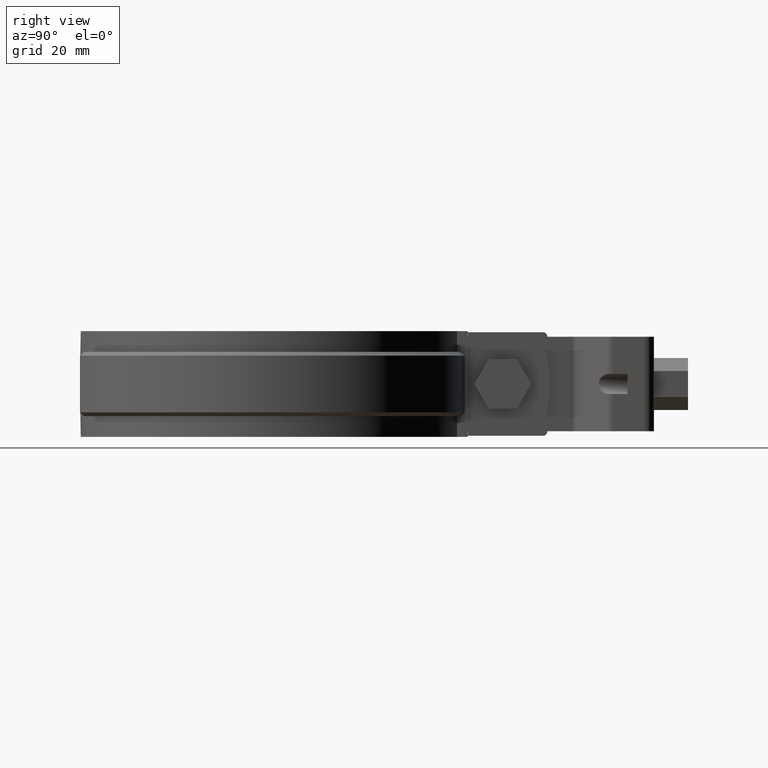
[diagram: clean part render]
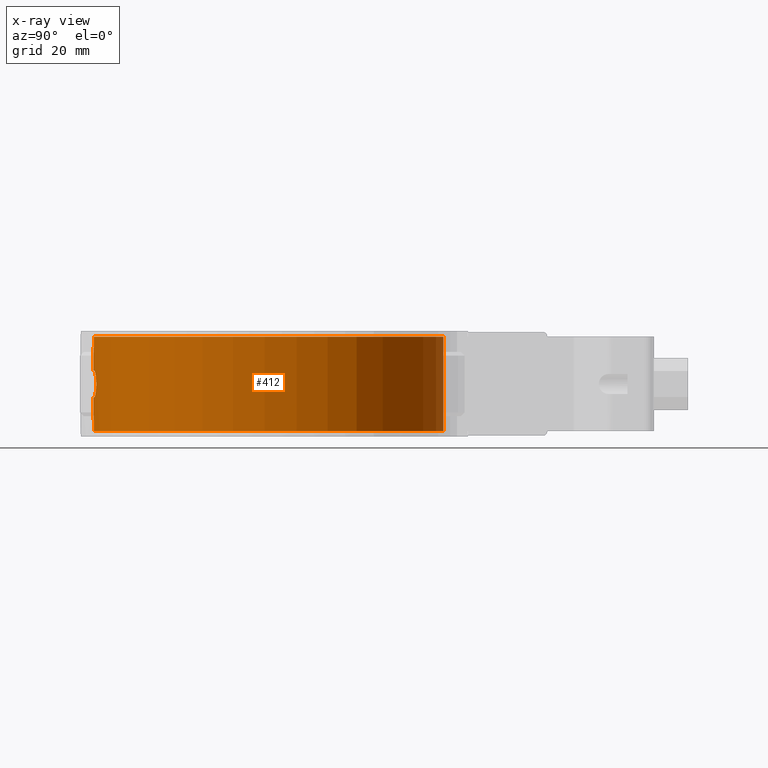
[diagram: x-ray — body ghosted, one internal face saturated and labeled with its STEP entity id]
A machine part, right view, then the same camera in x-ray: the body is ghosted and one INTERNAL B-rep face — a face not visible from any outside direction — is saturated and labeled: STEP entity #412.
In plain terms, the highlighted cylindrical surface (partial cylindrical patch) has radius 46.55 mm, axis along (0, 0, 1).
Its self-contained STEP definition (entity closure, byte-faithful):
#412 = ADVANCED_FACE( '', ( #800, #801 ), #802, .T. );
#800 = FACE_BOUND( '', #1784, .T. );
#801 = FACE_OUTER_BOUND( '', #1785, .T. );
#802 = CYLINDRICAL_SURFACE( '', #1786, 46.5500000000000 );
#1784 = EDGE_LOOP( '', ( #3670, #3671, #3672, #3673, #3674, #3675, #3676, #3677, #3678, #3679, #3680, #3681, #3682, #3683, #3684, #3685 ) );
#1785 = EDGE_LOOP( '', ( #3686, #3687, #3688, #3689 ) );
#1786 = AXIS2_PLACEMENT_3D( '', #3690, #3691, #3692 );
#3670 = ORIENTED_EDGE( '', *, *, #6330, .F. );
#3671 = ORIENTED_EDGE( '', *, *, #6331, .F. );
#3672 = ORIENTED_EDGE( '', *, *, #6332, .F. );
#3673 = ORIENTED_EDGE( '', *, *, #6333, .F. );
#3674 = ORIENTED_EDGE( '', *, *, #6334, .F. );
#3675 = ORIENTED_EDGE( '', *, *, #6335, .F. );
#3676 = ORIENTED_EDGE( '', *, *, #6336, .F. );
#3677 = ORIENTED_EDGE( '', *, *, #6337, .F. );
#3678 = ORIENTED_EDGE( '', *, *, #6338, .F. );
#3679 = ORIENTED_EDGE( '', *, *, #6339, .F. );
#3680 = ORIENTED_EDGE( '', *, *, #6340, .F. );
#3681 = ORIENTED_EDGE( '', *, *, #6341, .F. );
#3682 = ORIENTED_EDGE( '', *, *, #6342, .F. );
#3683 = ORIENTED_EDGE( '', *, *, #6343, .F. );
#3684 = ORIENTED_EDGE( '', *, *, #6344, .F. );
#3685 = ORIENTED_EDGE( '', *, *, #6345, .F. );
#3686 = ORIENTED_EDGE( '', *, *, #6346, .T. );
#3687 = ORIENTED_EDGE( '', *, *, #6347, .F. );
#3688 = ORIENTED_EDGE( '', *, *, #6324, .F. );
#3689 = ORIENTED_EDGE( '', *, *, #6348, .T. );
#3690 = CARTESIAN_POINT( '', ( 8.67361737988404E-016, 1.38777878078145E-014, 14.0000000000000 ) );
#3691 = DIRECTION( '', ( 0.000000000000000, 0.000000000000000, 1.00000000000000 ) );
#3692 = DIRECTION( '', ( 0.107411385606873, 0.994214662053428, 0.000000000000000 ) );
#6324 = EDGE_CURVE( '', #7362, #7364, #7365, .T. );
#6330 = EDGE_CURVE( '', #7375, #7376, #7377, .T. );
#6331 = EDGE_CURVE( '', #7378, #7375, #7379, .F. );
#6332 = EDGE_CURVE( '', #7380, #7378, #7381, .T. );
#6333 = EDGE_CURVE( '', #7382, #7380, #7383, .F. );
#6334 = EDGE_CURVE( '', #7384, #7382, #7385, .T. );
#6335 = EDGE_CURVE( '', #7386, #7384, #7387, .F. );
#6336 = EDGE_CURVE( '', #7388, #7386, #7389, .T. );
#6337 = EDGE_CURVE( '', #7390, #7388, #7391, .F. );
#6338 = EDGE_CURVE( '', #7392, #7390, #7393, .T. );
#6339 = EDGE_CURVE( '', #7394, #7392, #7395, .F. );
#6340 = EDGE_CURVE( '', #7396, #7394, #7397, .T. );
#6341 = EDGE_CURVE( '', #7398, #7396, #7399, .F. );
#6342 = EDGE_CURVE( '', #7400, #7398, #7401, .T. );
#6343 = EDGE_CURVE( '', #7402, #7400, #7403, .F. );
#6344 = EDGE_CURVE( '', #7404, #7402, #7405, .T. );
#6345 = EDGE_CURVE( '', #7376, #7404, #7406, .F. );
#6346 = EDGE_CURVE( '', #7407, #7408, #7409, .T. );
#6347 = EDGE_CURVE( '', #7364, #7408, #7410, .T. );
#6348 = EDGE_CURVE( '', #7362, #7407, #7411, .T. );
#7362 = VERTEX_POINT( '', #10411 );
#7364 = VERTEX_POINT( '', #10413 );
#7365 = CIRCLE( '', #10414, 46.5500000000000 );
#7375 = VERTEX_POINT( '', #10442 );
#7376 = VERTEX_POINT( '', #10443 );
#7377 = B_SPLINE_CURVE_WITH_KNOTS( '', 3, ( #10444, #10445, #10446, #10447, #10448, #10449 ), .UNSPECIFIED., .F., .F., ( 4, 2, 4 ), ( 2.61054119918270E-012, 0.000335866558676800, 0.000671733114743058 ), .UNSPECIFIED. );
#7378 = VERTEX_POINT( '', #10450 );
#7379 = ELLIPSE( '', #10451, 212.061327465781, 46.5500000000000 );
#7380 = VERTEX_POINT( '', #10452 );
#7381 = B_SPLINE_CURVE_WITH_KNOTS( '', 3, ( #10453, #10454, #10455, #10456, #10457, #10458, #10459, #10460, #10461, #10462 ), .UNSPECIFIED., .F., .F., ( 4, 2, 2, 2, 4 ), ( 1.08420217248550E-019, 0.000671567803738432, 0.00134313560747686, 0.00201470341121530, 0.00268627121495373 ), .UNSPECIFIED. );
#7382 = VERTEX_POINT( '', #10463 );
#7383 = ELLIPSE( '', #10464, 212.061219288399, 46.5500000000000 );
#7384 = VERTEX_POINT( '', #10465 );
#7385 = B_SPLINE_CURVE_WITH_KNOTS( '', 3, ( #10466, #10467, #10468, #10469, #10470, #10471 ), .UNSPECIFIED., .F., .F., ( 4, 2, 4 ), ( 6.50521303491303E-019, 0.000335865706471800, 0.000671731412943599 ), .UNSPECIFIED. );
#7386 = VERTEX_POINT( '', #10472 );
#7387 = CIRCLE( '', #10473, 46.5500000000000 );
#7388 = VERTEX_POINT( '', #10474 );
#7389 = B_SPLINE_CURVE_WITH_KNOTS( '', 3, ( #10475, #10476, #10477, #10478, #10479, #10480, #10481, #10482, #10483, #10484, #10485, #10486, #10487, #10488, #10489, #10490, #10491, #10492, #10493, #10494, #10495, #10496, #10497, #10498, #10499, #10500, #10501, #10502, #10503, #10504, #10505, #10506, #10507, #10508 ), .UNSPECIFIED., .F., .F., ( 4, 2, 2, 2, 2, 2, 2, 2, 2, 2, 2, 2, 2, 2, 2, 2, 4 ), ( 2.63797774002510E-018, 0.000687153855287155, 0.00137430771057431, 0.00206146156586146, 0.00274861542114861, 0.00343576927643576, 0.00412292313172292, 0.00481007698701007, 0.00549723084229722, 0.00618438469758438, 0.00687153855287153, 0.00755869240815868, 0.00824584626344583, 0.00893300011873299, 0.00962015397402014, 0.0103073078293073, 0.0109944616845944 ), .UNSPECIFIED. );
#7390 = VERTEX_POINT( '', #10509 );
#7391 = CIRCLE( '', #10510, 46.5500000000000 );
#7392 = VERTEX_POINT( '', #10511 );
#7393 = B_SPLINE_CURVE_WITH_KNOTS( '', 3, ( #10512, #10513, #10514, #10515, #10516, #10517 ), .UNSPECIFIED., .F., .F., ( 4, 2, 4 ), ( 0.000000000000000, 0.000335866557371516, 0.000671733114743032 ), .UNSPECIFIED. );
#7394 = VERTEX_POINT( '', #10518 );
#7395 = ELLIPSE( '', #10519, 212.061327465736, 46.5500000000000 );
#7396 = VERTEX_POINT( '', #10520 );
#7397 = B_SPLINE_CURVE_WITH_KNOTS( '', 3, ( #10521, #10522, #10523, #10524, #10525, #10526, #10527, #10528, #10529, #10530 ), .UNSPECIFIED., .F., .F., ( 4, 2, 2, 2, 4 ), ( 1.08420217248550E-019, 0.000671567803738432, 0.00134313560747686, 0.00201470341121530, 0.00268627121495373 ), .UNSPECIFIED. );
#7398 = VERTEX_POINT( '', #10531 );
#7399 = ELLIPSE( '', #10532, 212.061219288385, 46.5500000000000 );
#7400 = VERTEX_POINT( '', #10533 );
#7401 = B_SPLINE_CURVE_WITH_KNOTS( '', 3, ( #10534, #10535, #10536, #10537, #10538, #10539 ), .UNSPECIFIED., .F., .F., ( 4, 2, 4 ), ( 6.50521303491303E-019, 0.000335865780853563, 0.000671731561707125 ), .UNSPECIFIED. );
#7402 = VERTEX_POINT( '', #10540 );
#7403 = CIRCLE( '', #10541, 46.5500000000000 );
#7404 = VERTEX_POINT( '', #10542 );
#7405 = B_SPLINE_CURVE_WITH_KNOTS( '', 3, ( #10543, #10544, #10545, #10546, #10547, #10548, #10549, #10550, #10551, #10552, #10553, #10554, #10555, #10556, #10557, #10558, #10559, #10560, #10561, #10562, #10563, #10564, #10565, #10566, #10567, #10568, #10569, #10570, #10571, #10572, #10573, #10574, #10575, #10576 ), .UNSPECIFIED., .F., .F., ( 4, 2, 2, 2, 2, 2, 2, 2, 2, 2, 2, 2, 2, 2, 2, 2, 4 ), ( 1.78811203067275E-018, 0.000687153882971472, 0.00137430776594294, 0.00206146164891441, 0.00274861553188588, 0.00343576941485735, 0.00412292329782882, 0.00481007718080029, 0.00549723106377176, 0.00618438494674323, 0.00687153882971470, 0.00755869271268617, 0.00824584659565764, 0.00893300047862911, 0.00962015436160057, 0.0103073082445720, 0.0109944621275435 ), .UNSPECIFIED. );
#7406 = CIRCLE( '', #10577, 46.5500000000000 );
#7407 = VERTEX_POINT( '', #10578 );
#7408 = VERTEX_POINT( '', #10579 );
#7409 = CIRCLE( '', #10580, 46.5500000000000 );
#7410 = LINE( '', #10581, #10582 );
#7411 = LINE( '', #10583, #10584 );
#10411 = CARTESIAN_POINT( '', ( -6.57618567103940, 46.0831453138782, 12.5000000000000 ) );
#10413 = CARTESIAN_POINT( '', ( 6.57618567103934, 46.0831453138782, 12.5000000000000 ) );
#10414 = AXIS2_PLACEMENT_3D( '', #12710, #12711, #12712 );
#10442 = CARTESIAN_POINT( '', ( -1.16219512159039, -46.5354897094610, 3.89024390404278 ) );
#10443 = CARTESIAN_POINT( '', ( -1.65000682858043, -46.5207478171368, 3.50000000000001 ) );
#10444 = CARTESIAN_POINT( '', ( -1.16219512100910, -46.5354897094755, 3.89024390662629 ) );
#10445 = CARTESIAN_POINT( '', ( -1.18712430834741, -46.5348671184149, 3.77944751401507 ) );
#10446 = CARTESIAN_POINT( '', ( -1.24903601564424, -46.5333243675404, 3.68044135836372 ) );
#10447 = CARTESIAN_POINT( '', ( -1.42636244791044, -46.5282264634093, 3.53861503248765 ) );
#10448 = CARTESIAN_POINT( '', ( -1.53650488200991, -46.5247735093210, 3.50000000000000 ) );
#10449 = CARTESIAN_POINT( '', ( -1.65000000000002, -46.5207480593337, 3.50000000000000 ) );
#10450 = CARTESIAN_POINT( '', ( -0.975610000000002, -46.5397753016481, 4.71951200000000 ) );
#10451 = AXIS2_PLACEMENT_3D( '', #12719, #12720, #12721 );
#10452 = CARTESIAN_POINT( '', ( 0.975609757981829, -46.5397753067215, 4.71951218674745 ) );
#10453 = CARTESIAN_POINT( '', ( 0.975609757981829, -46.5397753067216, 4.71951218674745 ) );
#10454 = CARTESIAN_POINT( '', ( 0.925763530062202, -46.5408202293933, 4.94105088737464 ) );
#10455 = CARTESIAN_POINT( '', ( 0.802006305269125, -46.5434284250094, 5.13901841187625 ) );
#10456 = CARTESIAN_POINT( '', ( 0.447390993628906, -46.5481877731720, 5.42271336043309 ) );
#10457 = CARTESIAN_POINT( '', ( 0.227078940025845, -46.5500000020690, 5.50000007705422 ) );
#10458 = CARTESIAN_POINT( '', ( -0.227079788287816, -46.5499999979310, 5.49999992981291 ) );
#10459 = CARTESIAN_POINT( '', ( -0.447400404871723, -46.5481876641531, 5.42270760689847 ) );
#10460 = CARTESIAN_POINT( '', ( -0.802005970919182, -46.5434284122056, 5.13901722379013 ) );
#10461 = CARTESIAN_POINT( '', ( -0.925763810819942, -46.5408202237671, 4.94105072646416 ) );
#10462 = CARTESIAN_POINT( '', ( -0.975610000000002, -46.5397753016481, 4.71951200000000 ) );
#10463 = CARTESIAN_POINT( '', ( 1.16219499999999, -46.5354897124976, 3.89024400000000 ) );
#10464 = AXIS2_PLACEMENT_3D( '', #12722, #12723, #12724 );
#10465 = CARTESIAN_POINT( '', ( 1.64999985338327, -46.5207480645339, 3.50000000000001 ) );
#10466 = CARTESIAN_POINT( '', ( 1.64999985338327, -46.5207480645339, 3.50000000000001 ) );
#10467 = CARTESIAN_POINT( '', ( 1.53650473210132, -46.5247735142798, 3.50000003276938 ) );
#10468 = CARTESIAN_POINT( '', ( 1.42636208492635, -46.5282264719796, 3.53861567992496 ) );
#10469 = CARTESIAN_POINT( '', ( 1.24903833388322, -46.5333243027578, 3.68043907505769 ) );
#10470 = CARTESIAN_POINT( '', ( 1.18712418773605, -46.5348671214920, 3.77944760784149 ) );
#10471 = CARTESIAN_POINT( '', ( 1.16219499999999, -46.5354897124977, 3.89024400000000 ) );
#10472 = CARTESIAN_POINT( '', ( 5.00000000000005, -46.2806925185870, 3.50000000000001 ) );
#10473 = AXIS2_PLACEMENT_3D( '', #12725, #12726, #12727 );
#10474 = CARTESIAN_POINT( '', ( 5.00000045640250, -46.2806924692789, -3.49999999999999 ) );
#10475 = CARTESIAN_POINT( '', ( 5.00000045640250, -46.2806924692790, -3.49999999999999 ) );
#10476 = CARTESIAN_POINT( '', ( 5.23102106610029, -46.2557338290275, -3.49999997017233 ) );
#10477 = CARTESIAN_POINT( '', ( 5.45799987825243, -46.2294633025122, -3.47735289382784 ) );
#10478 = CARTESIAN_POINT( '', ( 5.90426049893031, -46.1745898505888, -3.38881391632060 ) );
#10479 = CARTESIAN_POINT( '', ( 6.12580446615839, -46.1456667121773, -3.32188126735501 ) );
#10480 = CARTESIAN_POINT( '', ( 6.54861750302442, -46.0875649765535, -3.14708056049549 ) );
#10481 = CARTESIAN_POINT( '', ( 6.74912349530375, -46.0585351708356, -3.04015198784038 ) );
#10482 = CARTESIAN_POINT( '', ( 7.12865837246471, -46.0013212837050, -2.78760982851635 ) );
#10483 = CARTESIAN_POINT( '', ( 7.30866038664463, -45.9729568370787, -2.64046611082769 ) );
#10484 = CARTESIAN_POINT( '', ( 7.63169234832155, -45.9204371591972, -2.31865829217156 ) );
#10485 = CARTESIAN_POINT( '', ( 7.77675668729094, -45.8959855185138, -2.14300665957758 ) );
#10486 = CARTESIAN_POINT( '', ( 8.03321742033214, -45.8517922132454, -1.76137560577943 ) );
#10487 = CARTESIAN_POINT( '', ( 8.14286709248893, -45.8323487025125, -1.55710842709564 ) );
#10488 = CARTESIAN_POINT( '', ( 8.31862646017255, -45.8007742935724, -1.13530704311511 ) );
#10489 = CARTESIAN_POINT( '', ( 8.38624550175340, -45.7883776663458, -0.914891106130496 ) );
#10490 = CARTESIAN_POINT( '', ( 8.47729764712873, -45.7716076572975, -0.460527173351232 ) );
#10491 = CARTESIAN_POINT( '', ( 8.49980240594055, -45.7674104478266, -0.232279077470369 ) );
#10492 = CARTESIAN_POINT( '', ( 8.50019502774523, -45.7673375294014, 0.226285044048782 ) );
#10493 = CARTESIAN_POINT( '', ( 8.47735734561299, -45.7715960510356, 0.459203352271291 ) );
#10494 = CARTESIAN_POINT( '', ( 8.38738052822720, -45.7881692197789, 0.910239572443790 ) );
#10495 = CARTESIAN_POINT( '', ( 8.32082453500568, -45.8003754511833, 1.12914289397610 ) );
#10496 = CARTESIAN_POINT( '', ( 8.14462244122536, -45.8320372414492, 1.55376511699691 ) );
#10497 = CARTESIAN_POINT( '', ( 8.03452138018219, -45.8515604122794, 1.75891288938776 ) );
#10498 = CARTESIAN_POINT( '', ( 7.78038526948292, -45.8953672074636, 2.13811939918123 ) );
#10499 = CARTESIAN_POINT( '', ( 7.63542065789159, -45.9198242279763, 2.31469933826260 ) );
#10500 = CARTESIAN_POINT( '', ( 7.30862022143948, -45.9729700607865, 2.64074814788168 ) );
#10501 = CARTESIAN_POINT( '', ( 7.13206941632344, -46.0007900861461, 2.78496147469918 ) );
#10502 = CARTESIAN_POINT( '', ( 6.75371262726835, -46.0578600073560, 3.03746910929911 ) );
#10503 = CARTESIAN_POINT( '', ( 6.54952335391558, -46.0874356862922, 3.14662697606876 ) );
#10504 = CARTESIAN_POINT( '', ( 6.12695479998138, -46.1455134241736, 3.32148439381650 ) );
#10505 = CARTESIAN_POINT( '', ( 5.90945041499932, -46.1739288055971, 3.38746892245342 ) );
#10506 = CARTESIAN_POINT( '', ( 5.46202402647784, -46.2289908940901, 3.47686337254867 ) );
#10507 = CARTESIAN_POINT( '', ( 5.23100508323780, -46.2557355580635, 3.50000000000000 ) );
#10508 = CARTESIAN_POINT( '', ( 5.00000000000005, -46.2806925185871, 3.50000000000000 ) );
#10509 = CARTESIAN_POINT( '', ( 1.65000000000003, -46.5207480593337, -3.49999999999999 ) );
#10510 = AXIS2_PLACEMENT_3D( '', #12728, #12729, #12730 );
#10511 = CARTESIAN_POINT( '', ( 1.16219512100914, -46.5354897094755, -3.89024390662629 ) );
#10512 = CARTESIAN_POINT( '', ( 1.16219512100914, -46.5354897094755, -3.89024390662629 ) );
#10513 = CARTESIAN_POINT( '', ( 1.18712430844433, -46.5348671184125, -3.77944751358448 ) );
#10514 = CARTESIAN_POINT( '', ( 1.24903601441358, -46.5333243675738, -3.68044135973260 ) );
#10515 = CARTESIAN_POINT( '', ( 1.42636244707374, -46.5282264634353, -3.53861503277232 ) );
#10516 = CARTESIAN_POINT( '', ( 1.53650488156885, -46.5247735093367, -3.50000000000002 ) );
#10517 = CARTESIAN_POINT( '', ( 1.65000000000003, -46.5207480593337, -3.50000000000002 ) );
#10518 = CARTESIAN_POINT( '', ( 0.975609999999998, -46.5397753016481, -4.71951200000000 ) );
#10519 = AXIS2_PLACEMENT_3D( '', #12731, #12732, #12733 );
#10520 = CARTESIAN_POINT( '', ( -0.975609757981835, -46.5397753067215, -4.71951218674743 ) );
#10521 = CARTESIAN_POINT( '', ( -0.975609757981835, -46.5397753067216, -4.71951218674743 ) );
#10522 = CARTESIAN_POINT( '', ( -0.925763530062208, -46.5408202293933, -4.94105088737462 ) );
#10523 = CARTESIAN_POINT( '', ( -0.802006305269130, -46.5434284250094, -5.13901841187623 ) );
#10524 = CARTESIAN_POINT( '', ( -0.447390993628912, -46.5481877731720, -5.42271336043307 ) );
#10525 = CARTESIAN_POINT( '', ( -0.227078940025850, -46.5500000020690, -5.50000007705420 ) );
#10526 = CARTESIAN_POINT( '', ( 0.227079788287810, -46.5499999979310, -5.49999992981289 ) );
#10527 = CARTESIAN_POINT( '', ( 0.447400404871716, -46.5481876641531, -5.42270760689846 ) );
#10528 = CARTESIAN_POINT( '', ( 0.802005970919175, -46.5434284122056, -5.13901722379012 ) );
#10529 = CARTESIAN_POINT( '', ( 0.925763810819937, -46.5408202237671, -4.94105072646415 ) );
#10530 = CARTESIAN_POINT( '', ( 0.975609999999998, -46.5397753016481, -4.71951200000000 ) );
#10531 = CARTESIAN_POINT( '', ( -1.16219500000001, -46.5354897124976, -3.89024399999999 ) );
#10532 = AXIS2_PLACEMENT_3D( '', #12734, #12735, #12736 );
#10533 = CARTESIAN_POINT( '', ( -1.64999999999996, -46.5207480593337, -3.50000000000000 ) );
#10534 = CARTESIAN_POINT( '', ( -1.64999999999996, -46.5207480593337, -3.50000000000000 ) );
#10535 = CARTESIAN_POINT( '', ( -1.53650485359794, -46.5247735103287, -3.49999999951289 ) );
#10536 = CARTESIAN_POINT( '', ( -1.42636217255432, -46.5282264693543, -3.53861563053761 ) );
#10537 = CARTESIAN_POINT( '', ( -1.24903835752516, -46.5333243021842, -3.68043903545146 ) );
#10538 = CARTESIAN_POINT( '', ( -1.18712419326018, -46.5348671213540, -3.77944758328983 ) );
#10539 = CARTESIAN_POINT( '', ( -1.16219500000001, -46.5354897124977, -3.89024399999999 ) );
#10540 = CARTESIAN_POINT( '', ( -4.99999999999996, -46.2806925185870, -3.49999999999999 ) );
#10541 = AXIS2_PLACEMENT_3D( '', #12737, #12738, #12739 );
#10542 = CARTESIAN_POINT( '', ( -4.99999999999995, -46.2806925185870, 3.49999999999999 ) );
#10543 = CARTESIAN_POINT( '', ( -4.99999999999995, -46.2806925185871, 3.49999999999999 ) );
#10544 = CARTESIAN_POINT( '', ( -5.23102061923499, -46.2557338796101, 3.49999999999999 ) );
#10545 = CARTESIAN_POINT( '', ( -5.45799944364655, -46.2294633538933, 3.47735295196014 ) );
#10546 = CARTESIAN_POINT( '', ( -5.90426009345670, -46.1745899025062, 3.38881402486156 ) );
#10547 = CARTESIAN_POINT( '', ( -6.12580407810966, -46.1456667637754, 3.32188139904435 ) );
#10548 = CARTESIAN_POINT( '', ( -6.54861715180519, -46.0875650265435, 3.14708073443647 ) );
#10549 = CARTESIAN_POINT( '', ( -6.74912316385102, -46.0585352194934, 3.04015217952470 ) );
#10550 = CARTESIAN_POINT( '', ( -7.12865808355649, -46.0013213285650, 2.78761004961941 ) );
#10551 = CARTESIAN_POINT( '', ( -7.30866011964015, -45.9729568796067, 2.64046634434638 ) );
#10552 = CARTESIAN_POINT( '', ( -7.63169212620998, -45.9204371961912, 2.31865854591509 ) );
#10553 = CARTESIAN_POINT( '', ( -7.77675648767638, -45.8959855524029, 2.14300691967566 ) );
#10554 = CARTESIAN_POINT( '', ( -8.03321726657160, -45.8517922402499, 1.76137587152718 ) );
#10555 = CARTESIAN_POINT( '', ( -8.14286695952600, -45.8323487261774, 1.55710869626848 ) );
#10556 = CARTESIAN_POINT( '', ( -8.31862636957706, -45.8007743100688, 1.13530731045498 ) );
#10557 = CARTESIAN_POINT( '', ( -8.38624543214993, -45.7883776791127, 0.914891365683322 ) );
#10558 = CARTESIAN_POINT( '', ( -8.47729761426446, -45.7716076634032, 0.460527425126594 ) );
#10559 = CARTESIAN_POINT( '', ( -8.49980239049752, -45.7674104506947, 0.232279322292272 ) );
#10560 = CARTESIAN_POINT( '', ( -8.50019504278588, -45.7673375266080, -0.226284819196435 ) );
#10561 = CARTESIAN_POINT( '', ( -8.47735737429713, -45.7715960457113, -0.459203140119223 ) );
#10562 = CARTESIAN_POINT( '', ( -8.38738057996330, -45.7881692102903, -0.910239381463747 ) );
#10563 = CARTESIAN_POINT( '', ( -8.32082459610061, -45.8003754400710, -1.12914271597525 ) );
#10564 = CARTESIAN_POINT( '', ( -8.14462251528833, -45.8320372282750, -1.55376496928572 ) );
#10565 = CARTESIAN_POINT( '', ( -8.03452146006033, -45.8515603982741, -1.75891275294265 ) );
#10566 = CARTESIAN_POINT( '', ( -7.78038535525886, -45.8953671929142, -2.13811928844700 ) );
#10567 = CARTESIAN_POINT( '', ( -7.63542073882135, -45.9198242145161, -2.31469924684414 ) );
#10568 = CARTESIAN_POINT( '', ( -7.30862030434756, -45.9729700476026, -2.64074807583888 ) );
#10569 = CARTESIAN_POINT( '', ( -7.13206949739762, -46.0007900735982, -2.78496141334430 ) );
#10570 = CARTESIAN_POINT( '', ( -6.75371269795579, -46.0578599970128, -3.03746906937120 ) );
#10571 = CARTESIAN_POINT( '', ( -6.54952341436346, -46.0874356777243, -3.14662694683519 ) );
#10572 = CARTESIAN_POINT( '', ( -6.12695485091150, -46.1455134174337, -3.32148437696213 ) );
#10573 = CARTESIAN_POINT( '', ( -5.90945045816292, -46.1739288001280, -3.38746891163571 ) );
#10574 = CARTESIAN_POINT( '', ( -5.46202404727442, -46.2289908916880, -3.47686337058726 ) );
#10575 = CARTESIAN_POINT( '', ( -5.23100509302412, -46.2557355570062, -3.49999999999999 ) );
#10576 = CARTESIAN_POINT( '', ( -4.99999999999995, -46.2806925185871, -3.49999999999999 ) );
#10577 = AXIS2_PLACEMENT_3D( '', #12740, #12741, #12742 );
#10578 = CARTESIAN_POINT( '', ( -6.57618567103935, 46.0831453138782, -12.5000000000000 ) );
#10579 = CARTESIAN_POINT( '', ( 6.57618567103934, 46.0831453138782, -12.5000000000000 ) );
#10580 = AXIS2_PLACEMENT_3D( '', #12743, #12744, #12745 );
#10581 = CARTESIAN_POINT( '', ( 6.57618567103934, 46.0831453138782, 14.0000000000000 ) );
#10582 = VECTOR( '', #12746, 1000.00000000000 );
#10583 = CARTESIAN_POINT( '', ( -6.57618567103935, 46.0831453138782, 14.0000000000000 ) );
#10584 = VECTOR( '', #12747, 1000.00000000000 );
#12710 = CARTESIAN_POINT( '', ( -8.67361737988404E-016, 6.93889390390723E-015, 12.5000000000000 ) );
#12711 = DIRECTION( '', ( 0.000000000000000, 0.000000000000000, 1.00000000000000 ) );
#12712 = DIRECTION( '', ( 1.00000000000000, -5.55111512312578E-017, 0.000000000000000 ) );
#12719 = CARTESIAN_POINT( '', ( 0.000000000000000, 0.000000000000000, 9.05556109223646 ) );
#12720 = DIRECTION( '', ( -0.975609806487721, 6.36069438470190E-017, 0.219511971165565 ) );
#12721 = DIRECTION( '', ( 0.219511971165565, -1.43115470250783E-017, 0.975609806487721 ) );
#12722 = CARTESIAN_POINT( '', ( 0.000000000000000, 0.000000000000000, 9.05555787945006 ) );
#12723 = DIRECTION( '', ( 0.975609781292650, -6.53264035817127E-017, 0.219512083143749 ) );
#12724 = DIRECTION( '', ( -0.219512083143749, 1.46984329282873E-017, 0.975609781292650 ) );
#12725 = CARTESIAN_POINT( '', ( 0.000000000000000, 0.000000000000000, 3.50000000000000 ) );
#12726 = DIRECTION( '', ( 1.29456975819165E-016, -3.91655396250965E-018, 1.00000000000000 ) );
#12727 = DIRECTION( '', ( 1.00000000000000, 0.000000000000000, -1.29456975819165E-016 ) );
#12728 = CARTESIAN_POINT( '', ( 0.000000000000000, 0.000000000000000, -3.49999999999999 ) );
#12729 = DIRECTION( '', ( -1.29456975819163E-016, 3.91655396250965E-018, -1.00000000000000 ) );
#12730 = DIRECTION( '', ( -1.00000000000000, 0.000000000000000, 1.29456975819163E-016 ) );
#12731 = CARTESIAN_POINT( '', ( 0.000000000000000, 0.000000000000000, -9.05556109223549 ) );
#12732 = DIRECTION( '', ( 0.975609806487710, -6.36069438470180E-017, -0.219511971165612 ) );
#12733 = DIRECTION( '', ( 0.219511971165612, -1.43115470250813E-017, 0.975609806487710 ) );
#12734 = CARTESIAN_POINT( '', ( 0.000000000000000, 0.000000000000000, -9.05555787944971 ) );
#12735 = DIRECTION( '', ( -0.975609781292646, 6.53264035817126E-017, -0.219512083143765 ) );
#12736 = DIRECTION( '', ( -0.219512083143765, 1.46984329282883E-017, 0.975609781292646 ) );
#12737 = CARTESIAN_POINT( '', ( 0.000000000000000, 0.000000000000000, -3.49999999999999 ) );
#12738 = DIRECTION( '', ( -1.29456975819163E-016, 3.91655396250965E-018, -1.00000000000000 ) );
#12739 = DIRECTION( '', ( -1.00000000000000, 0.000000000000000, 1.29456975819163E-016 ) );
#12740 = CARTESIAN_POINT( '', ( 0.000000000000000, 0.000000000000000, 3.50000000000000 ) );
#12741 = DIRECTION( '', ( 1.29456975819167E-016, -3.91655396250965E-018, 1.00000000000000 ) );
#12742 = DIRECTION( '', ( 1.00000000000000, 0.000000000000000, -1.29456975819167E-016 ) );
#12743 = CARTESIAN_POINT( '', ( -8.67361737988404E-016, 6.93889390390723E-015, -12.5000000000000 ) );
#12744 = DIRECTION( '', ( 0.000000000000000, 0.000000000000000, 1.00000000000000 ) );
#12745 = DIRECTION( '', ( 1.00000000000000, -5.55111512312578E-017, 0.000000000000000 ) );
#12746 = DIRECTION( '', ( 0.000000000000000, 0.000000000000000, -1.00000000000000 ) );
#12747 = DIRECTION( '', ( 0.000000000000000, 0.000000000000000, -1.00000000000000 ) );